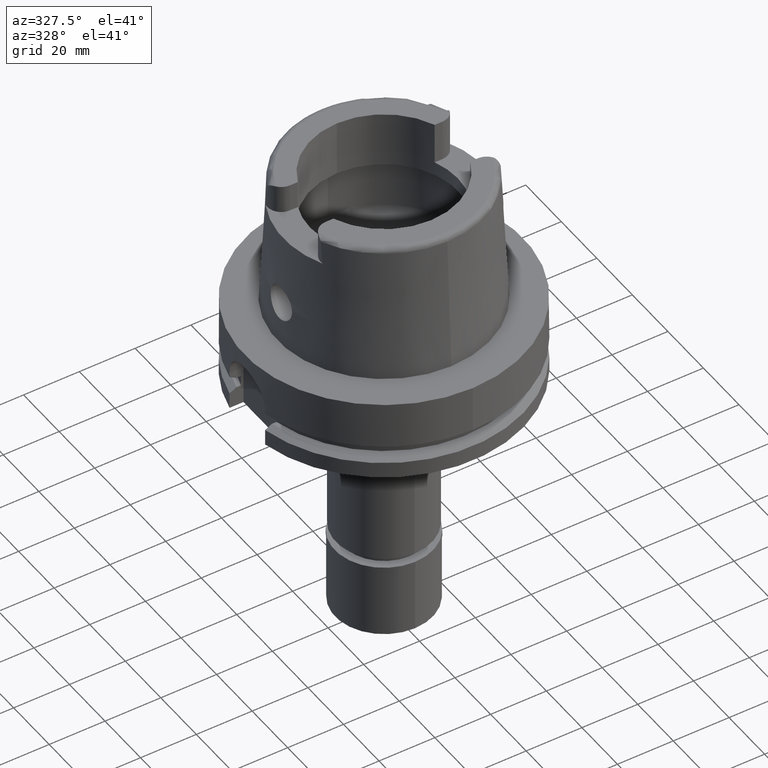
[diagram: clean part render]
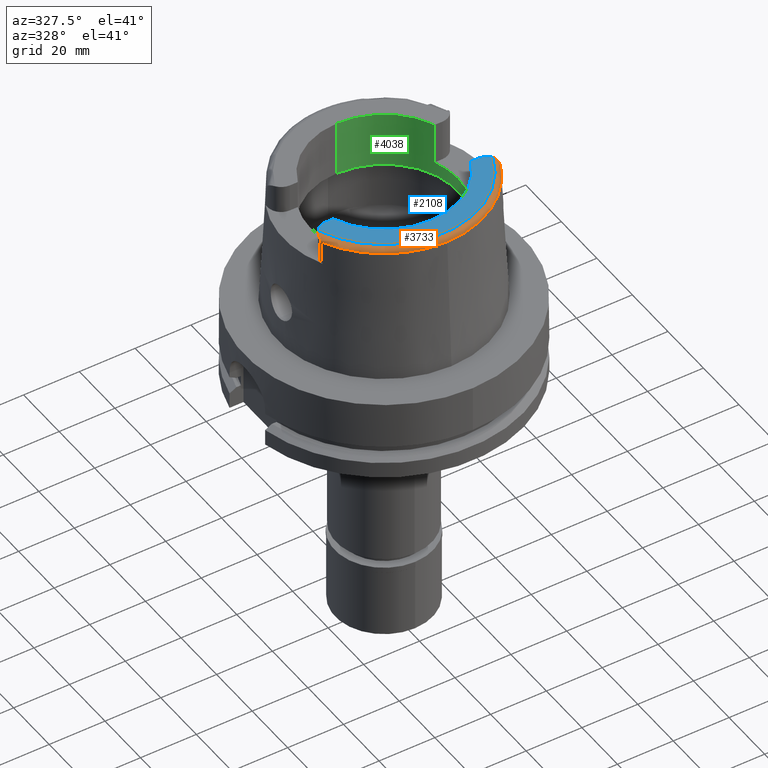
[diagram: same view with three faces highlighted in distinct colors, each labeled with its STEP entity id]
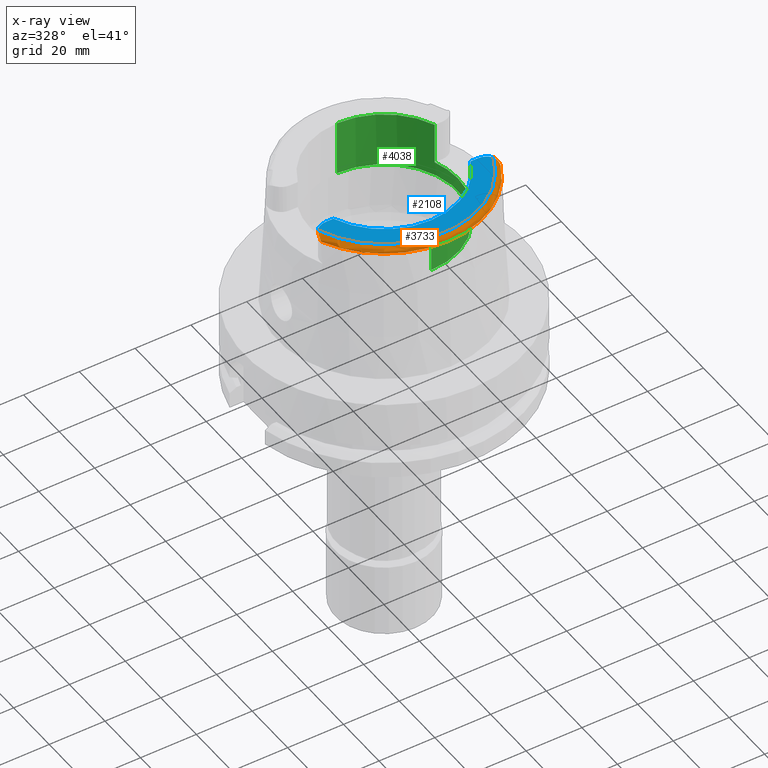
[diagram: x-ray of the same camera — body ghosted, the three highlighted faces saturated]
A machine part, auxiliary view with three faces highlighted in distinct colors.
The next image is the same camera in x-ray (body ghosted, the three faces saturated) — at least one of them is partly hidden behind the body in this view.
Their STEP definitions:

[orange] entity #3733 — the highlighted toroidal blend (fillet) surface has major radius 33.5974 mm and minor (blend) radius 2 mm.
#69 = CARTESIAN_POINT ( 'NONE',  ( -32.21997154295708299, -14.33986060153810804, 49.10585851092585585 ) ) ;
#115 = CARTESIAN_POINT ( 'NONE',  ( 32.11106762437481876, -13.73373448739807934, 49.49621256863725449 ) ) ;
#199 = CARTESIAN_POINT ( 'NONE',  ( 32.14575896193450433, -13.87809870675725143, 49.41644853181067987 ) ) ;
#245 = CARTESIAN_POINT ( 'NONE',  ( -32.25000000000000000, -15.04649635392508600, 48.25198855459063196 ) ) ;
#320 = VERTEX_POINT ( 'NONE', #974 ) ;
#403 = CARTESIAN_POINT ( 'NONE',  ( -32.06989427478456633, -13.57277803930572269, 49.58185308799170343 ) ) ;
#434 = CARTESIAN_POINT ( 'NONE',  ( -32.23863424911637310, -14.55644612129431792, 48.92169581074878693 ) ) ;
#519 = CARTESIAN_POINT ( 'NONE',  ( -32.12242946382377085, -13.78136211252013510, 49.46979525017155765 ) ) ;
#521 = CARTESIAN_POINT ( 'NONE',  ( 31.52472805267068878, -12.31314672449533809, 50.00000000000000000 ) ) ;
#547 = CARTESIAN_POINT ( 'NONE',  ( 32.25000000000000000, -14.89000000000000057, 48.54599893821999501 ) ) ;
#568 = CARTESIAN_POINT ( 'NONE',  ( 31.89367392572772886, -13.05636157801165531, 49.80515632473943555 ) ) ;
#601 = CARTESIAN_POINT ( 'NONE',  ( 32.20552012062263003, -14.23033140510443850, 49.18541010399668068 ) ) ;
#630 = CARTESIAN_POINT ( 'NONE',  ( 31.84633948727248764, -12.94493854820724188, 49.84305217303462143 ) ) ;
#777 = EDGE_CURVE ( 'NONE', #2073, #320, #5021, .T. ) ;
#890 = CARTESIAN_POINT ( 'NONE',  ( -32.09793222657230416, -13.67909585327356581, 49.52639805273395979 ) ) ;
#912 = CARTESIAN_POINT ( 'NONE',  ( -32.24274011032661491, -14.62049233055707198, 48.86211325490140212 ) ) ;
#967 = CARTESIAN_POINT ( 'NONE',  ( 32.25000000000000000, -14.89000000000000057, 48.54599893821999501 ) ) ;
#970 = CARTESIAN_POINT ( 'NONE',  ( 31.98536014322397136, -13.30468890799340720, 49.70546850259122351 ) ) ;
#974 = CARTESIAN_POINT ( 'NONE',  ( -32.25000000000000000, -14.89000000000000057, 48.54599893821999501 ) ) ;
#994 = CARTESIAN_POINT ( 'NONE',  ( 32.21885693854724764, -14.33891833839435748, 49.10381371232288927 ) ) ;
#1014 = CARTESIAN_POINT ( 'NONE',  ( 32.19756004343657452, -14.17410893826670915, 49.22522610360447004 ) ) ;
#1158 = CARTESIAN_POINT ( 'NONE',  ( 0.0000000000000000000, 0.0000000000000000000, 50.00000000000000000 ) ) ;
#1162 = CARTESIAN_POINT ( 'NONE',  ( -32.25000000000000000, -14.98833473112508763, 48.40074416426729442 ) ) ;
#1208 = DIRECTION ( 'NONE',  ( 0.9060280460804950309, -0.4232176505245974218, 0.0000000000000000000 ) ) ;
#1352 = CARTESIAN_POINT ( 'NONE',  ( -32.20670129772037882, -14.23089129689073218, 49.18705887155721967 ) ) ;
#1377 = CARTESIAN_POINT ( 'NONE',  ( 32.25000000000000000, -14.89000000000000057, 48.54599893821999501 ) ) ;
#1442 = CARTESIAN_POINT ( 'NONE',  ( 32.04948146333044434, -13.50203895655699959, 49.61666111988300543 ) ) ;
#1461 = CARTESIAN_POINT ( 'NONE',  ( -31.68047359066965996, -12.57991151625195236, 49.95525762152563942 ) ) ;
#1471 = AXIS2_PLACEMENT_3D ( 'NONE', #2814, #3293, #2346 ) ;
#1479 = CARTESIAN_POINT ( 'NONE',  ( -32.24999491821000674, -15.06448486839999923, 48.09973210919000053 ) ) ;
#1626 = EDGE_CURVE ( 'NONE', #5368, #5173, #2608, .T. ) ;
#1639 = TOROIDAL_SURFACE ( 'NONE', #1471, 33.59743838135999994, 2.000000000000000000 ) ;
#1686 = CARTESIAN_POINT ( 'NONE',  ( -31.99765750758638205, -13.34093628940196474, 49.68970871126825983 ) ) ;
#1790 = CARTESIAN_POINT ( 'NONE',  ( 32.25000000000000000, -14.98829434881219314, 48.40080381485007166 ) ) ;
#1817 = VERTEX_POINT ( 'NONE', #4181 ) ;
#2016 = CIRCLE ( 'NONE', #5144, 35.59494289391000166 ) ;
#2073 = VERTEX_POINT ( 'NONE', #4356 ) ;
#2131 = CARTESIAN_POINT ( 'NONE',  ( -32.03221871923921071, -13.44757349623435516, 49.64160592765539093 ) ) ;
#2158 = DIRECTION ( 'NONE',  ( 0.0000000000000000000, 0.0000000000000000000, -1.000000000000000000 ) ) ;
#2164 = CARTESIAN_POINT ( 'NONE',  ( -31.35385269249000473, -12.07161079256999869, 50.00000000000000000 ) ) ;
#2186 = CARTESIAN_POINT ( 'NONE',  ( -32.25000000000000000, -14.89000000000000057, 48.54599893821999501 ) ) ;
#2218 = CARTESIAN_POINT ( 'NONE',  ( 31.94417196506094925, -13.18875734010700995, 49.75378983772301922 ) ) ;
#2238 = CARTESIAN_POINT ( 'NONE',  ( 31.67987990509340435, -12.57850626029117969, 49.95574373591314554 ) ) ;
#2325 = CARTESIAN_POINT ( 'NONE',  ( 31.97829473882285356, -13.28425057566046519, 49.71420355442344174 ) ) ;
#2346 = DIRECTION ( 'NONE',  ( -0.0004184165975219878483, -0.9999999124637716230, 0.0000000000000000000 ) ) ;
#2507 = EDGE_CURVE ( 'NONE', #2975, #2073, #2016, .T. ) ;
#2515 = CARTESIAN_POINT ( 'NONE',  ( -32.23355765246423488, -14.48909605558031544, 48.98135518671213617 ) ) ;
#2549 = CARTESIAN_POINT ( 'NONE',  ( -32.00324063772160343, -13.35773404063141001, 49.68228510062959913 ) ) ;
#2608 = B_SPLINE_CURVE_WITH_KNOTS ( 'NONE', 3,
 ( #967, #1790, #3673, #2753 ),
 .UNSPECIFIED., .F., .F.,
 ( 4, 4 ),
 ( 0.0000000000000000000, 1.000000000000000000 ),
 .UNSPECIFIED. ) ;
#2632 = CARTESIAN_POINT ( 'NONE',  ( -32.23708234601729572, -14.53443502902944040, 48.94157202672111140 ) ) ;
#2634 = CARTESIAN_POINT ( 'NONE',  ( 31.35385269249000473, -12.07161079256999869, 50.00000000000000000 ) ) ;
#2661 = CARTESIAN_POINT ( 'NONE',  ( 32.25000000000001421, -14.78368284683236489, 48.70304491652903067 ) ) ;
#2667 = B_SPLINE_CURVE_WITH_KNOTS ( 'NONE', 3,
 ( #2634, #521, #2238, #630, #568, #2218, #3560, #2325, #970, #3916, #1442, #3129, #3938, #3999, #115, #199, #3531, #1014, #601, #3104, #994, #3151, #3606, #2686, #2661, #1377 ),
 .UNSPECIFIED., .F., .F.,
 ( 4, 2, 1, 1, 2, 2, 1, 1, 2, 2, 2, 2, 2, 2, 4 ),
 ( 0.0000000000000000000, 0.2499999999999950040, 0.3124999999999920064, 0.3437499999999890643, 0.3593749999999884537, 0.3749999999999877875, 0.4374999999999862887, 0.4687499999999847899, 0.4843749999999835132, 0.4999999999999821809, 0.6249999999999876765, 0.6874999999999906741, 0.7187499999999918954, 0.7499999999999930056, 1.000000000000000000 ),
 .UNSPECIFIED. ) ;
#2686 = CARTESIAN_POINT ( 'NONE',  ( 32.24707930863881700, -14.63435107754458642, 48.86105682457643695 ) ) ;
#2753 = CARTESIAN_POINT ( 'NONE',  ( 32.25000552016999222, -15.06439825904999985, 48.10004195543000094 ) ) ;
#2776 = EDGE_CURVE ( 'NONE', #320, #2952, #4854, .T. ) ;
#2814 = CARTESIAN_POINT ( 'NONE',  ( 0.0000000000000000000, 0.0000000000000000000, 48.00000000000000000 ) ) ;
#2853 = DIRECTION ( 'NONE',  ( 0.0000000000000000000, 0.0000000000000000000, -1.000000000000000000 ) ) ;
#2924 = ORIENTED_EDGE ( 'NONE', *, *, #3330, .F. ) ;
#2952 = VERTEX_POINT ( 'NONE', #2164 ) ;
#2962 = CARTESIAN_POINT ( 'NONE',  ( -32.17882615292622717, -14.05752359648819194, 49.30364884522170144 ) ) ;
#2975 = VERTEX_POINT ( 'NONE', #4752 ) ;
#2990 = CARTESIAN_POINT ( 'NONE',  ( -32.25000000000000000, -14.83671757275175906, 48.62470487290332954 ) ) ;
#3043 = CARTESIAN_POINT ( 'NONE',  ( -32.14998262605784163, -13.90657052242979930, 49.39733344508703539 ) ) ;
#3104 = CARTESIAN_POINT ( 'NONE',  ( 32.21573810803924687, -14.31209294752031980, 49.12437650961284419 ) ) ;
#3129 = CARTESIAN_POINT ( 'NONE',  ( 32.08379312071981815, -13.62631676413941229, 49.55366402817837468 ) ) ;
#3151 = CARTESIAN_POINT ( 'NONE',  ( 32.22456498788634605, -14.39169950166199108, 49.06225158608558701 ) ) ;
#3239 = CARTESIAN_POINT ( 'NONE',  ( 32.25000552016999222, -15.06439825904999985, 48.10004195543000094 ) ) ;
#3280 = ORIENTED_EDGE ( 'NONE', *, *, #1626, .F. ) ;
#3293 = DIRECTION ( 'NONE',  ( 0.0000000000000000000, 0.0000000000000000000, 1.000000000000000000 ) ) ;
#3330 = EDGE_CURVE ( 'NONE', #5173, #2975, #4448, .T. ) ;
#3412 = CARTESIAN_POINT ( 'NONE',  ( 0.0000000000000000000, 0.0000000000000000000, 48.09987853799000135 ) ) ;
#3441 = AXIS2_PLACEMENT_3D ( 'NONE', #1158, #2853, #4572 ) ;
#3529 = CARTESIAN_POINT ( 'NONE',  ( -31.52460009297541887, -12.31296585076252015, 49.99999999999998579 ) ) ;
#3531 = CARTESIAN_POINT ( 'NONE',  ( 32.16967719280477667, -14.00048171132359975, 49.34205491248360431 ) ) ;
#3560 = CARTESIAN_POINT ( 'NONE',  ( 31.96478408575979913, -13.24598941035112176, 49.73024248671484315 ) ) ;
#3606 = CARTESIAN_POINT ( 'NONE',  ( 32.22730297216357087, -14.41927316013207161, 49.03990689208543330 ) ) ;
#3673 = CARTESIAN_POINT ( 'NONE',  ( 32.25000000000000000, -15.04642710182886134, 48.25215148725340697 ) ) ;
#3677 = ORIENTED_EDGE ( 'NONE', *, *, #777, .F. ) ;
#3700 = CARTESIAN_POINT ( 'NONE',  ( -32.25000000000000000, -14.89000000000000057, 48.54599893821999501 ) ) ;
#3733 = ADVANCED_FACE ( 'NONE', ( #4954 ), #1639, .T. ) ;
#3769 = CARTESIAN_POINT ( 'NONE',  ( 0.0000000000000000000, 0.0000000000000000000, 48.09987853799000135 ) ) ;
#3804 = CARTESIAN_POINT ( 'NONE',  ( -32.01497944764171422, -13.39369665232591977, 49.66615470862480208 ) ) ;
#3830 = CARTESIAN_POINT ( 'NONE',  ( -31.93892174677421281, -13.16786561481264073, 49.76489100690417189 ) ) ;
#3886 = CARTESIAN_POINT ( 'NONE',  ( -32.23172322665772072, -14.46726828814950494, 49.00001592073446943 ) ) ;
#3916 = CARTESIAN_POINT ( 'NONE',  ( 32.01585097874148289, -13.39459475562000890, 49.66639386315048910 ) ) ;
#3938 = CARTESIAN_POINT ( 'NONE',  ( 32.09747111333530967, -13.67931931785381927, 49.52559908361372010 ) ) ;
#3950 = ORIENTED_EDGE ( 'NONE', *, *, #5052, .T. ) ;
#3999 = CARTESIAN_POINT ( 'NONE',  ( 32.10636469090408696, -13.71459353570829087, 49.50665218924240207 ) ) ;
#4078 = AXIS2_PLACEMENT_3D ( 'NONE', #3412, #2158, #1208 ) ;
#4181 = CARTESIAN_POINT ( 'NONE',  ( 31.35385269249000473, -12.07161079256999869, 50.00000000000000000 ) ) ;
#4199 = DIRECTION ( 'NONE',  ( 0.0000000000000000000, 0.0000000000000000000, -1.000000000000000000 ) ) ;
#4225 = CARTESIAN_POINT ( 'NONE',  ( -32.11906456584814151, -13.76700723560571404, 49.47783090360479719 ) ) ;
#4346 = CARTESIAN_POINT ( 'NONE',  ( -32.12970341972335575, -13.81301943822086997, 49.45188333668489378 ) ) ;
#4356 = CARTESIAN_POINT ( 'NONE',  ( -32.24999491821000674, -15.06448486839999923, 48.09973210919000053 ) ) ;
#4448 = CIRCLE ( 'NONE', #4078, 35.59494289391000166 ) ;
#4483 = ORIENTED_EDGE ( 'NONE', *, *, #2776, .F. ) ;
#4492 = EDGE_CURVE ( 'NONE', #1817, #5368, #2667, .T. ) ;
#4544 = DIRECTION ( 'NONE',  ( 0.0000000000000000000, -1.000000000000000000, 0.0000000000000000000 ) ) ;
#4572 = DIRECTION ( 'NONE',  ( 0.9332215253017949186, -0.3593015233941980191, 0.0000000000000000000 ) ) ;
#4608 = EDGE_LOOP ( 'NONE', ( #5302, #2924, #3280, #4828, #3950, #4483, #3677 ) ) ;
#4693 = CARTESIAN_POINT ( 'NONE',  ( -32.16820364123563536, -13.99808543665405480, 49.34164374189612090 ) ) ;
#4746 = CARTESIAN_POINT ( 'NONE',  ( -32.24474584144229539, -14.66053970487686264, 48.82245300709589486 ) ) ;
#4752 = CARTESIAN_POINT ( 'NONE',  ( 1.065814103639999922E-14, -35.59494289391000166, 48.09987853799000135 ) ) ;
#4771 = CARTESIAN_POINT ( 'NONE',  ( -32.24916268361852190, -14.77266420165837957, 48.70365663195769912 ) ) ;
#4828 = ORIENTED_EDGE ( 'NONE', *, *, #4492, .F. ) ;
#4854 = B_SPLINE_CURVE_WITH_KNOTS ( 'NONE', 3,
 ( #2186, #2990, #4771, #4746, #912, #434, #2632, #2515, #3886, #69, #1352, #2962, #4693, #3043, #5511, #4346, #519, #4225, #890, #403, #2131, #3804, #2549, #1686, #3830, #5318, #1461, #3529, #4906 ),
 .UNSPECIFIED., .F., .F.,
 ( 4, 2, 2, 2, 2, 2, 2, 1, 2, 2, 1, 1, 2, 2, 2, 4 ),
 ( 0.0000000000000000000, 0.1250000000000025258, 0.1875000000000008882, 0.2187500000000026090, 0.2500000000000043299, 0.3750000000000052736, 0.4375000000000030531, 0.4687500000000034972, 0.4843750000000027756, 0.5000000000000021094, 0.5624999999999986677, 0.5937499999999963363, 0.6093749999999944489, 0.6249999999999925615, 0.7499999999999951150, 1.000000000000000000 ),
 .UNSPECIFIED. ) ;
#4906 = CARTESIAN_POINT ( 'NONE',  ( -31.35385269249000473, -12.07161079256999869, 50.00000000000000000 ) ) ;
#4954 = FACE_OUTER_BOUND ( 'NONE', #4608, .T. ) ;
#5021 = B_SPLINE_CURVE_WITH_KNOTS ( 'NONE', 3,
 ( #1479, #245, #1162, #3700 ),
 .UNSPECIFIED., .F., .F.,
 ( 4, 4 ),
 ( 0.0000000000000000000, 1.000000000000000000 ),
 .UNSPECIFIED. ) ;
#5052 = EDGE_CURVE ( 'NONE', #1817, #2952, #5407, .T. ) ;
#5144 = AXIS2_PLACEMENT_3D ( 'NONE', #3769, #4199, #4544 ) ;
#5173 = VERTEX_POINT ( 'NONE', #3239 ) ;
#5302 = ORIENTED_EDGE ( 'NONE', *, *, #2507, .F. ) ;
#5318 = CARTESIAN_POINT ( 'NONE',  ( -31.87894979474007684, -13.01667552379064752, 49.82103048610256479 ) ) ;
#5368 = VERTEX_POINT ( 'NONE', #547 ) ;
#5407 = CIRCLE ( 'NONE', #3441, 33.59743838135999994 ) ;
#5511 = CARTESIAN_POINT ( 'NONE',  ( -32.14030011419768584, -13.86022403747464438, 49.42485263622736369 ) ) ;

[blue] entity #2108 — the highlighted planar face has unit normal (0, 0, 1).
#51 = VERTEX_POINT ( 'NONE', #5054 ) ;
#206 = DIRECTION ( 'NONE',  ( -1.000000000000000000, -1.454542536837999925E-13, 0.0000000000000000000 ) ) ;
#215 = AXIS2_PLACEMENT_3D ( 'NONE', #3714, #3630, #704 ) ;
#218 = CARTESIAN_POINT ( 'NONE',  ( 27.36999999999999744, -10.00999999999999979, 50.00000000000000000 ) ) ;
#237 = LINE ( 'NONE', #3586, #3884 ) ;
#242 = CIRCLE ( 'NONE', #4629, 26.50000000000000000 ) ;
#704 = DIRECTION ( 'NONE',  ( 0.0000000000000000000, 1.000000000000000000, 0.0000000000000000000 ) ) ;
#946 = VECTOR ( 'NONE', #2122, 1000.000000000000000 ) ;
#1007 = VERTEX_POINT ( 'NONE', #4026 ) ;
#1027 = CIRCLE ( 'NONE', #3069, 4.880000000000001670 ) ;
#1103 = AXIS2_PLACEMENT_3D ( 'NONE', #4804, #4830, #5268 ) ;
#1158 = CARTESIAN_POINT ( 'NONE',  ( 0.0000000000000000000, 0.0000000000000000000, 50.00000000000000000 ) ) ;
#1232 = VERTEX_POINT ( 'NONE', #4468 ) ;
#1334 = DIRECTION ( 'NONE',  ( 0.0000000000000000000, -1.000000000000000000, 0.0000000000000000000 ) ) ;
#1518 = ORIENTED_EDGE ( 'NONE', *, *, #4761, .T. ) ;
#1817 = VERTEX_POINT ( 'NONE', #4181 ) ;
#1893 = ORIENTED_EDGE ( 'NONE', *, *, #4148, .F. ) ;
#1993 = CIRCLE ( 'NONE', #215, 4.879999999999999005 ) ;
#2108 = ADVANCED_FACE ( 'NONE', ( #5518 ), #2560, .T. ) ;
#2122 = DIRECTION ( 'NONE',  ( -1.000000000000000000, 1.442003377036999905E-13, 0.0000000000000000000 ) ) ;
#2151 = ORIENTED_EDGE ( 'NONE', *, *, #3712, .F. ) ;
#2164 = CARTESIAN_POINT ( 'NONE',  ( -31.35385269249000473, -12.07161079256999869, 50.00000000000000000 ) ) ;
#2340 = EDGE_CURVE ( 'NONE', #3974, #51, #237, .T. ) ;
#2560 = PLANE ( 'NONE',  #4061 ) ;
#2625 = CIRCLE ( 'NONE', #1103, 26.50000000000000711 ) ;
#2641 = DIRECTION ( 'NONE',  ( 0.0000000000000000000, 0.0000000000000000000, 1.000000000000000000 ) ) ;
#2645 = CARTESIAN_POINT ( 'NONE',  ( -27.36999999999999744, -14.89000000000000057, 50.00000000000000000 ) ) ;
#2853 = DIRECTION ( 'NONE',  ( 0.0000000000000000000, 0.0000000000000000000, -1.000000000000000000 ) ) ;
#2919 = EDGE_CURVE ( 'NONE', #5452, #51, #242, .T. ) ;
#2952 = VERTEX_POINT ( 'NONE', #2164 ) ;
#3069 = AXIS2_PLACEMENT_3D ( 'NONE', #2645, #4758, #3547 ) ;
#3084 = CARTESIAN_POINT ( 'NONE',  ( 0.0000000000000000000, 0.0000000000000000000, 50.00000000000000000 ) ) ;
#3441 = AXIS2_PLACEMENT_3D ( 'NONE', #1158, #2853, #4572 ) ;
#3547 = DIRECTION ( 'NONE',  ( -0.8163632566568778115, 0.5775387720149849358, 0.0000000000000000000 ) ) ;
#3562 = CARTESIAN_POINT ( 'NONE',  ( 0.0000000000000000000, -26.50000000000000000, 50.00000000000000000 ) ) ;
#3582 = EDGE_CURVE ( 'NONE', #1232, #5452, #2625, .T. ) ;
#3586 = CARTESIAN_POINT ( 'NONE',  ( 27.36999999999999744, -10.00999999999999979, 50.00000000000000000 ) ) ;
#3630 = DIRECTION ( 'NONE',  ( 0.0000000000000000000, 0.0000000000000000000, -1.000000000000000000 ) ) ;
#3712 = EDGE_CURVE ( 'NONE', #3974, #1817, #1993, .T. ) ;
#3714 = CARTESIAN_POINT ( 'NONE',  ( 27.36999999999999744, -14.89000000000000057, 50.00000000000000000 ) ) ;
#3734 = LINE ( 'NONE', #4213, #946 ) ;
#3864 = DIRECTION ( 'NONE',  ( 0.0000000000000000000, 0.0000000000000000000, 1.000000000000000000 ) ) ;
#3871 = ORIENTED_EDGE ( 'NONE', *, *, #5052, .F. ) ;
#3884 = VECTOR ( 'NONE', #206, 1000.000000000000000 ) ;
#3974 = VERTEX_POINT ( 'NONE', #218 ) ;
#4026 = CARTESIAN_POINT ( 'NONE',  ( -27.36999999999999744, -10.00999999999999979, 50.00000000000000000 ) ) ;
#4061 = AXIS2_PLACEMENT_3D ( 'NONE', #3084, #2641, #5208 ) ;
#4148 = EDGE_CURVE ( 'NONE', #2952, #1007, #1027, .T. ) ;
#4181 = CARTESIAN_POINT ( 'NONE',  ( 31.35385269249000473, -12.07161079256999869, 50.00000000000000000 ) ) ;
#4208 = EDGE_LOOP ( 'NONE', ( #3871, #2151, #4241, #4452, #5263, #1518, #1893 ) ) ;
#4213 = CARTESIAN_POINT ( 'NONE',  ( -24.53670515777999839, -10.00999999999999979, 50.00000000000000000 ) ) ;
#4241 = ORIENTED_EDGE ( 'NONE', *, *, #2340, .T. ) ;
#4295 = CARTESIAN_POINT ( 'NONE',  ( 0.0000000000000000000, 0.0000000000000000000, 50.00000000000000000 ) ) ;
#4452 = ORIENTED_EDGE ( 'NONE', *, *, #2919, .F. ) ;
#4468 = CARTESIAN_POINT ( 'NONE',  ( -24.53670515777999839, -10.00999999999999979, 50.00000000000000000 ) ) ;
#4572 = DIRECTION ( 'NONE',  ( 0.9332215253017949186, -0.3593015233941980191, 0.0000000000000000000 ) ) ;
#4629 = AXIS2_PLACEMENT_3D ( 'NONE', #4295, #3864, #1334 ) ;
#4758 = DIRECTION ( 'NONE',  ( 0.0000000000000000000, 0.0000000000000000000, -1.000000000000000000 ) ) ;
#4761 = EDGE_CURVE ( 'NONE', #1232, #1007, #3734, .T. ) ;
#4804 = CARTESIAN_POINT ( 'NONE',  ( 0.0000000000000000000, 0.0000000000000000000, 50.00000000000000000 ) ) ;
#4830 = DIRECTION ( 'NONE',  ( 0.0000000000000000000, 0.0000000000000000000, 1.000000000000000000 ) ) ;
#5052 = EDGE_CURVE ( 'NONE', #1817, #2952, #5407, .T. ) ;
#5054 = CARTESIAN_POINT ( 'NONE',  ( 24.53670515777999839, -10.00999999999999979, 50.00000000000000000 ) ) ;
#5208 = DIRECTION ( 'NONE',  ( 1.000000000000000000, 0.0000000000000000000, 0.0000000000000000000 ) ) ;
#5263 = ORIENTED_EDGE ( 'NONE', *, *, #3582, .F. ) ;
#5268 = DIRECTION ( 'NONE',  ( -0.9259134021805098813, -0.3777358490566039562, 0.0000000000000000000 ) ) ;
#5407 = CIRCLE ( 'NONE', #3441, 33.59743838135999994 ) ;
#5452 = VERTEX_POINT ( 'NONE', #3562 ) ;
#5518 = FACE_OUTER_BOUND ( 'NONE', #4208, .T. ) ;

[green] entity #4038 — the highlighted cylindrical surface (partial cylindrical patch) has radius 26.5 mm, axis along (0, 0, 1).
#51 = VERTEX_POINT ( 'NONE', #5054 ) ;
#163 = CIRCLE ( 'NONE', #1853, 26.50000000000000000 ) ;
#222 = VERTEX_POINT ( 'NONE', #4526 ) ;
#242 = CIRCLE ( 'NONE', #4629, 26.50000000000000000 ) ;
#254 = DIRECTION ( 'NONE',  ( 0.0000000000000000000, 0.0000000000000000000, 1.000000000000000000 ) ) ;
#464 = DIRECTION ( 'NONE',  ( 0.9259134021805098813, -0.3777358490566039562, 0.0000000000000000000 ) ) ;
#468 = CARTESIAN_POINT ( 'NONE',  ( 0.0000000000000000000, -26.50000000000000000, 30.00337567297000163 ) ) ;
#486 = VERTEX_POINT ( 'NONE', #2883 ) ;
#495 = VECTOR ( 'NONE', #4252, 1000.000000000000000 ) ;
#523 = EDGE_CURVE ( 'NONE', #222, #5452, #2918, .T. ) ;
#667 = CYLINDRICAL_SURFACE ( 'NONE', #4330, 26.50000000000000000 ) ;
#770 = CIRCLE ( 'NONE', #1483, 26.50000000000000711 ) ;
#858 = DIRECTION ( 'NONE',  ( 0.0000000000000000000, 0.0000000000000000000, -1.000000000000000000 ) ) ;
#976 = CARTESIAN_POINT ( 'NONE',  ( 0.0000000000000000000, 26.50000000000000000, 30.00337567297000163 ) ) ;
#1037 = CARTESIAN_POINT ( 'NONE',  ( 0.0000000000000000000, 0.0000000000000000000, -116.9500000000000028 ) ) ;
#1322 = DIRECTION ( 'NONE',  ( 0.0000000000000000000, 1.000000000000000000, 0.0000000000000000000 ) ) ;
#1334 = DIRECTION ( 'NONE',  ( 0.0000000000000000000, -1.000000000000000000, 0.0000000000000000000 ) ) ;
#1370 = EDGE_LOOP ( 'NONE', ( #2657, #1709, #4127, #2898, #3225, #5119, #4329, #4074 ) ) ;
#1472 = LINE ( 'NONE', #1990, #4964 ) ;
#1483 = AXIS2_PLACEMENT_3D ( 'NONE', #4294, #5242, #464 ) ;
#1510 = DIRECTION ( 'NONE',  ( 0.0000000000000000000, 1.000000000000000000, 0.0000000000000000000 ) ) ;
#1588 = VERTEX_POINT ( 'NONE', #1976 ) ;
#1709 = ORIENTED_EDGE ( 'NONE', *, *, #3646, .T. ) ;
#1773 = VERTEX_POINT ( 'NONE', #2119 ) ;
#1853 = AXIS2_PLACEMENT_3D ( 'NONE', #4135, #858, #1322 ) ;
#1976 = CARTESIAN_POINT ( 'NONE',  ( 24.53670515777999839, -10.00999999999999979, 35.00000000000000000 ) ) ;
#1990 = CARTESIAN_POINT ( 'NONE',  ( 24.53670515777999839, -10.00999999999999979, 35.00000000000000000 ) ) ;
#2119 = CARTESIAN_POINT ( 'NONE',  ( 24.53670515777999839, 10.00999999999999979, 35.00000000000000000 ) ) ;
#2180 = VERTEX_POINT ( 'NONE', #976 ) ;
#2237 = DIRECTION ( 'NONE',  ( 0.0000000000000000000, -4.406108640804999471E-14, 1.000000000000000000 ) ) ;
#2393 = DIRECTION ( 'NONE',  ( 0.0000000000000000000, 0.0000000000000000000, 1.000000000000000000 ) ) ;
#2436 = AXIS2_PLACEMENT_3D ( 'NONE', #4022, #254, #4982 ) ;
#2619 = VERTEX_POINT ( 'NONE', #4085 ) ;
#2657 = ORIENTED_EDGE ( 'NONE', *, *, #4825, .F. ) ;
#2795 = DIRECTION ( 'NONE',  ( 0.0000000000000000000, 0.0000000000000000000, 1.000000000000000000 ) ) ;
#2883 = CARTESIAN_POINT ( 'NONE',  ( 0.0000000000000000000, 26.50000000000000000, 50.00000000000000000 ) ) ;
#2898 = ORIENTED_EDGE ( 'NONE', *, *, #3247, .T. ) ;
#2918 = LINE ( 'NONE', #468, #4869 ) ;
#2919 = EDGE_CURVE ( 'NONE', #5452, #51, #242, .T. ) ;
#3225 = ORIENTED_EDGE ( 'NONE', *, *, #523, .T. ) ;
#3247 = EDGE_CURVE ( 'NONE', #2180, #222, #163, .T. ) ;
#3401 = LINE ( 'NONE', #4403, #495 ) ;
#3557 = EDGE_CURVE ( 'NONE', #2180, #486, #3580, .T. ) ;
#3562 = CARTESIAN_POINT ( 'NONE',  ( 0.0000000000000000000, -26.50000000000000000, 50.00000000000000000 ) ) ;
#3580 = LINE ( 'NONE', #3937, #5039 ) ;
#3646 = EDGE_CURVE ( 'NONE', #2619, #486, #4590, .T. ) ;
#3864 = DIRECTION ( 'NONE',  ( 0.0000000000000000000, 0.0000000000000000000, 1.000000000000000000 ) ) ;
#3937 = CARTESIAN_POINT ( 'NONE',  ( 0.0000000000000000000, 26.50000000000000000, 30.00337567297000163 ) ) ;
#4022 = CARTESIAN_POINT ( 'NONE',  ( 0.0000000000000000000, 0.0000000000000000000, 50.00000000000000000 ) ) ;
#4038 = ADVANCED_FACE ( 'NONE', ( #4978 ), #667, .F. ) ;
#4074 = ORIENTED_EDGE ( 'NONE', *, *, #5395, .T. ) ;
#4085 = CARTESIAN_POINT ( 'NONE',  ( 24.53670515777999839, 10.00999999999999979, 50.00000000000000000 ) ) ;
#4127 = ORIENTED_EDGE ( 'NONE', *, *, #3557, .F. ) ;
#4135 = CARTESIAN_POINT ( 'NONE',  ( 0.0000000000000000000, 0.0000000000000000000, 30.00337567297000163 ) ) ;
#4252 = DIRECTION ( 'NONE',  ( 0.0000000000000000000, 0.0000000000000000000, -1.000000000000000000 ) ) ;
#4294 = CARTESIAN_POINT ( 'NONE',  ( 0.0000000000000000000, 0.0000000000000000000, 35.00000000000000000 ) ) ;
#4295 = CARTESIAN_POINT ( 'NONE',  ( 0.0000000000000000000, 0.0000000000000000000, 50.00000000000000000 ) ) ;
#4329 = ORIENTED_EDGE ( 'NONE', *, *, #4996, .F. ) ;
#4330 = AXIS2_PLACEMENT_3D ( 'NONE', #1037, #2393, #1510 ) ;
#4403 = CARTESIAN_POINT ( 'NONE',  ( 24.53670515777999839, 10.00999999999999979, 50.00000000000000000 ) ) ;
#4526 = CARTESIAN_POINT ( 'NONE',  ( 0.0000000000000000000, -26.50000000000000000, 30.00337567297000163 ) ) ;
#4590 = CIRCLE ( 'NONE', #2436, 26.50000000000000711 ) ;
#4629 = AXIS2_PLACEMENT_3D ( 'NONE', #4295, #3864, #1334 ) ;
#4825 = EDGE_CURVE ( 'NONE', #2619, #1773, #3401, .T. ) ;
#4869 = VECTOR ( 'NONE', #5134, 1000.000000000000000 ) ;
#4964 = VECTOR ( 'NONE', #2795, 1000.000000000000000 ) ;
#4978 = FACE_OUTER_BOUND ( 'NONE', #1370, .T. ) ;
#4982 = DIRECTION ( 'NONE',  ( 0.9259134021805098813, 0.3777358490566039562, 0.0000000000000000000 ) ) ;
#4996 = EDGE_CURVE ( 'NONE', #1588, #51, #1472, .T. ) ;
#5039 = VECTOR ( 'NONE', #2237, 1000.000000000000000 ) ;
#5054 = CARTESIAN_POINT ( 'NONE',  ( 24.53670515777999839, -10.00999999999999979, 50.00000000000000000 ) ) ;
#5119 = ORIENTED_EDGE ( 'NONE', *, *, #2919, .T. ) ;
#5134 = DIRECTION ( 'NONE',  ( 0.0000000000000000000, 4.406108640804999471E-14, 1.000000000000000000 ) ) ;
#5242 = DIRECTION ( 'NONE',  ( 0.0000000000000000000, 0.0000000000000000000, 1.000000000000000000 ) ) ;
#5395 = EDGE_CURVE ( 'NONE', #1588, #1773, #770, .T. ) ;
#5452 = VERTEX_POINT ( 'NONE', #3562 ) ;